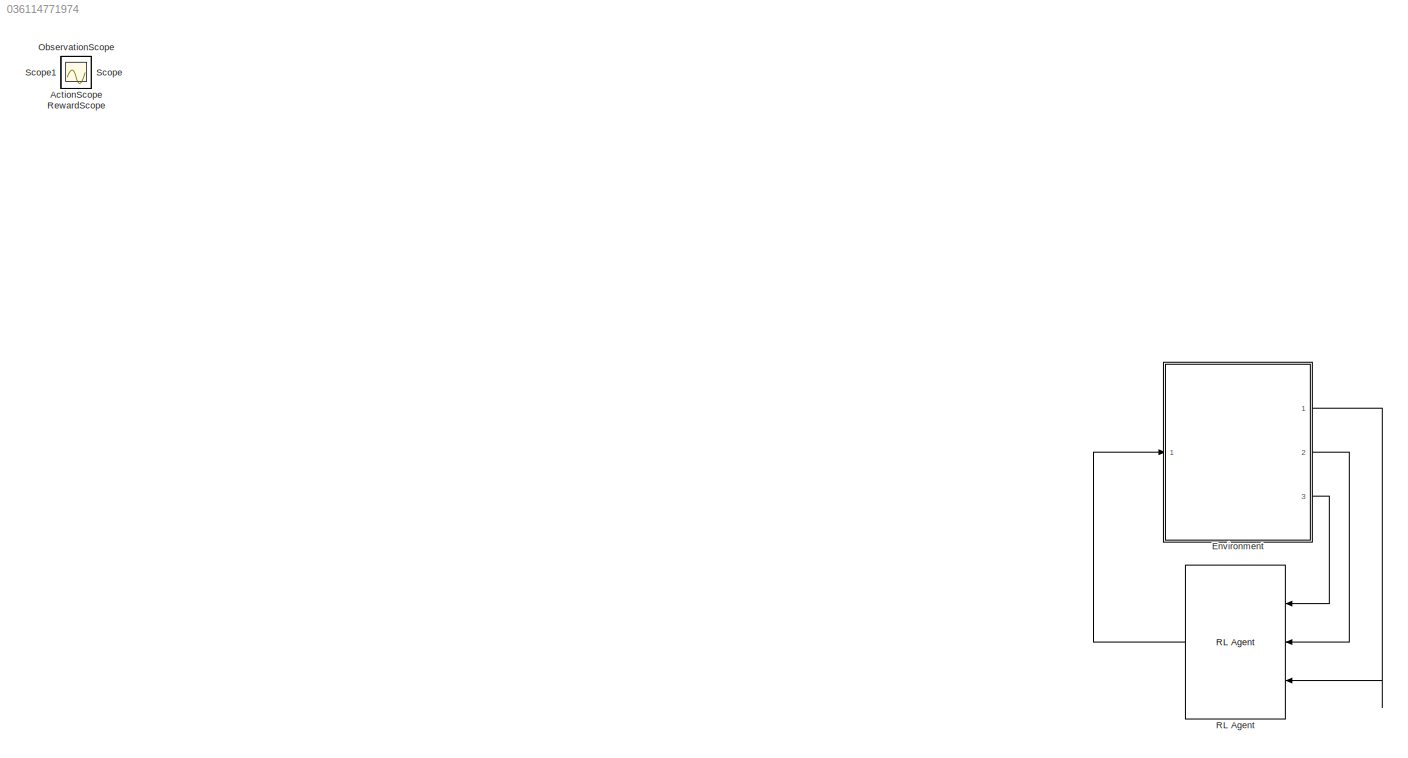
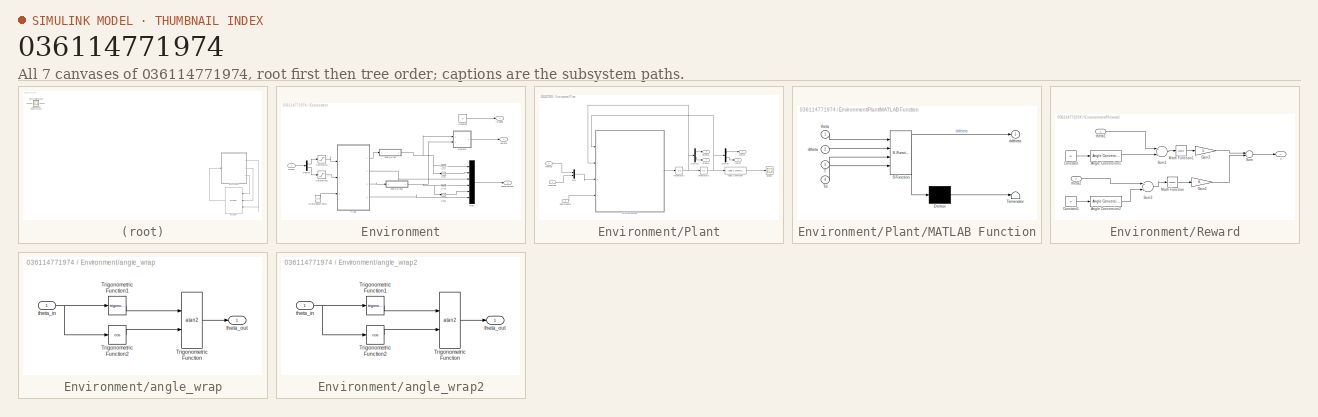
[diagram: thumbnail index - all 7 canvases of the model, root first then tree order]
MODEL slx_036114771974
KIND model
CONFIG AbsTol = auto
CONFIG EnableMultiTasking = off
CONFIG FixedStep = auto
CONFIG MaxStep = auto
CONFIG MinStep = auto
CONFIG RelTol = 1e-3
CONFIG SampleTimeConstraint = Unconstrained
CONFIG Solver = VariableStepAuto
CONFIG SolverName = VariableStepAuto
CONFIG StartTime = 0.0
CONFIG StopTime = 25
WORKSPACE source: MATLAB code (in-file)
WORKSPACE mCart = 1
WORKSPACE mPend = 1
WORKSPACE g = 9.81
WORKSPACE L = 0.5
WORKSPACE theta0 = 180
WORKSPACE Kd = 10
BLOCK [Scope] ActionScope
  Floating = off
  IOType = viewer
  NumInputPorts = 1
  Ports = []
  ScopeSpecificationString = Simulink.scopes.TimeScopeBlockCfg('CurrentConfiguration', extmgr.ConfigurationSet(extmgr.Configuration('Core','General UI',true),extmgr.Configuration('Core','Source UI',true),extmgr.Configuration('Sources','WiredSimulink',true,'DataLoggingVariableName','ScopeData1'),extmgr.Configuration('Visuals','Time Domain',true,'SerializedDisplays',{struct('MinYLimReal','-5.88542','MaxYLimReal','17.00032','YLa...<+1437ch>
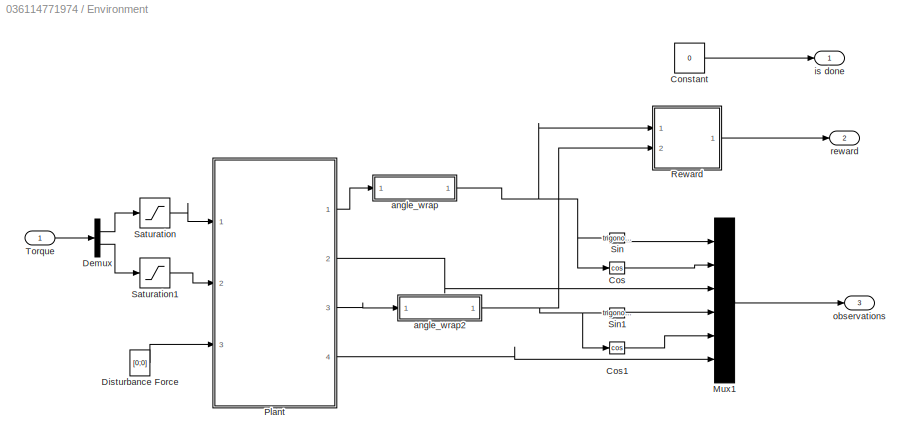
BLOCK [SubSystem] Environment
  Ports = [1, 3]
  RequestExecContextInheritance = off
BLOCK [Constant] Environment/Constant
  Value = 0
BLOCK [Trigonometry] Environment/Cos
  Operator = cos
  Ports = [1, 1]
BLOCK [Trigonometry] Environment/Cos1
  Operator = cos
  Ports = [1, 1]
BLOCK [Demux] Environment/Demux
  DisplayOption = bar
  Outputs = 2
  Ports = [1, 2]
BLOCK [Constant] Environment/Disturbance Force
  Value = [0;0]
BLOCK [Mux] Environment/Mux1
  DisplayOption = bar
  Inputs = 6
  Ports = [6, 1]
BLOCK [SubSystem] Environment/Plant
  Ports = [3, 4]
  RequestExecContextInheritance = off
BLOCK [Reference] Environment/Plant/Angle Conversion  REF=aerolibconvert2/Angle Conversion
  Ports = [1, 1]
  SourceBlock = aerolibconvert2/Angle Conversion
  SourceProductBaseCode = AE
  SourceProductName = Aerospace Blockset
  SourceType = Angle Conversion
BLOCK [Demux] Environment/Plant/Demux
  DisplayOption = bar
  Outputs = 2
  Ports = [1, 2]
BLOCK [Demux] Environment/Plant/Demux1
  DisplayOption = bar
  Outputs = 2
  Ports = [1, 2]
BLOCK [Integrator] Environment/Plant/Integrator2
  InitialCondition = zeros(2,1)
  Ports = [1, 1]
BLOCK [Integrator] Environment/Plant/Integrator3
  InitialCondition = [-pi/2;0]
  Ports = [1, 1]
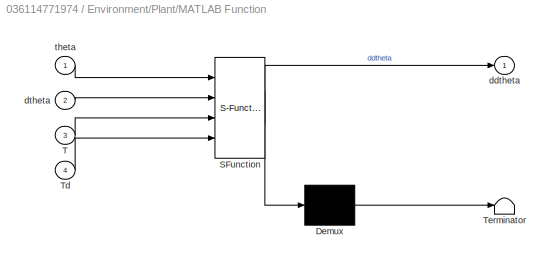
BLOCK [SubSystem] Environment/Plant/MATLAB Function
  ErrorFcn = Stateflow.Translate.translate
  PermitHierarchicalResolution = ExplicitOnly
  Ports = [4, 1]
  RequestExecContextInheritance = off
  SFBlockType = MATLAB Function
  TreatAsAtomicUnit = on
BLOCK [Demux] Environment/Plant/MATLAB Function/ Demux 
  Outputs = 1
  Ports = [1, 1]
BLOCK [S-Function] Environment/Plant/MATLAB Function/ SFunction 
  EnableBusSupport = on
  FunctionName = sf_sfun
  PortCounts = [4 2]
  Ports = [4, 2]
  SFcnIsStateOwnerBlock = off
  SFunctionDeploymentMode = off
  Tag = Stateflow S-Function twolink4 2
BLOCK [Terminator] Environment/Plant/MATLAB Function/ Terminator 
BLOCK [Inport] Environment/Plant/MATLAB Function/T
  IconDisplay = Port number
  Port = 3
BLOCK [Inport] Environment/Plant/MATLAB Function/Td
  IconDisplay = Port number
  Port = 4
BLOCK [Outport] Environment/Plant/MATLAB Function/ddtheta
  IconDisplay = Port number
BLOCK [Inport] Environment/Plant/MATLAB Function/dtheta
  IconDisplay = Port number
  Port = 2
BLOCK [Inport] Environment/Plant/MATLAB Function/theta
  IconDisplay = Port number
BLOCK [Mux] Environment/Plant/Mux
  DisplayOption = bar
  Inputs = 2
  Ports = [2, 1]
BLOCK [Scope] Environment/Plant/Scope
  Floating = off
  NumInputPorts = 1
  Ports = [1]
  ScopeSpecificationString = Simulink.scopes.TimeScopeBlockCfg('CurrentConfiguration', extmgr.ConfigurationSet(extmgr.Configuration('Core','General UI',true),extmgr.Configuration('Core','Source UI',true),extmgr.Configuration('Sources','WiredSimulink',true,'DataLoggingVariableName','ScopeData1'),extmgr.Configuration('Visuals','Time Domain',true,'SerializedDisplays',{struct('MinYLimReal','-101.25','MaxYLimReal','11.25','YLabelR...<+1465ch>
BLOCK [Inport] Environment/Plant/Tconrol1
  IconDisplay = Port number
BLOCK [Inport] Environment/Plant/Tcontrol2
  IconDisplay = Port number
  Port = 2
BLOCK [Inport] Environment/Plant/Tdisturbance
  IconDisplay = Port number
  Port = 3
BLOCK [Outport] Environment/Plant/dtheta1
  IconDisplay = Port number
  Port = 2
BLOCK [Outport] Environment/Plant/dtheta2
  IconDisplay = Port number
  Port = 4
BLOCK [Outport] Environment/Plant/theta1
  IconDisplay = Port number
BLOCK [Outport] Environment/Plant/theta2
  IconDisplay = Port number
  Port = 3
BLOCK [SubSystem] Environment/Reward
  Ports = [2, 1]
  RequestExecContextInheritance = off
BLOCK [Reference] Environment/Reward/Angle Conversion1  REF=aerolibconvert2/Angle Conversion
  Ports = [1, 1]
  SourceBlock = aerolibconvert2/Angle Conversion
  SourceProductBaseCode = AE
  SourceProductName = Aerospace Blockset
  SourceType = Angle Conversion
BLOCK [Reference] Environment/Reward/Angle Conversion2  REF=aerolibconvert2/Angle Conversion
  Ports = [1, 1]
  SourceBlock = aerolibconvert2/Angle Conversion
  SourceProductBaseCode = AE
  SourceProductName = Aerospace Blockset
  SourceType = Angle Conversion
BLOCK [Constant] Environment/Reward/Constant
  Value = 60
BLOCK [Constant] Environment/Reward/Constant1
  Value = 70
BLOCK [Gain] Environment/Reward/Gain2
  OutDataTypeStr = Inherit: Inherit via internal rule
  ParamDataTypeStr = Inherit: Inherit via internal rule
  SaturateOnIntegerOverflow = off
BLOCK [Gain] Environment/Reward/Gain3
  Gain = 5
  OutDataTypeStr = Inherit: Inherit via internal rule
  ParamDataTypeStr = Inherit: Inherit via internal rule
  SaturateOnIntegerOverflow = off
BLOCK [Math] Environment/Reward/Math Function
  Operator = square
  Ports = [1, 1]
BLOCK [Math] Environment/Reward/Math Function1
  Operator = square
  Ports = [1, 1]
BLOCK [Sum] Environment/Reward/Sum
  InputSameDT = off
  Inputs = --
  OutDataTypeStr = Inherit: Inherit via internal rule
  Ports = [2, 1]
  SaturateOnIntegerOverflow = off
BLOCK [Sum] Environment/Reward/Sum1
  InputSameDT = off
  OutDataTypeStr = Inherit: Inherit via internal rule
  Ports = [2, 1]
  SaturateOnIntegerOverflow = off
BLOCK [Sum] Environment/Reward/Sum2
  InputSameDT = off
  OutDataTypeStr = Inherit: Inherit via internal rule
  Ports = [2, 1]
  SaturateOnIntegerOverflow = off
BLOCK [Outport] Environment/Reward/r
  IconDisplay = Port number
BLOCK [Inport] Environment/Reward/theta1
  IconDisplay = Port number
BLOCK [Inport] Environment/Reward/theta2
  IconDisplay = Port number
  Port = 2
BLOCK [Saturate] Environment/Saturation
  InputPortMap = u0
  LowerLimit = -15
  Ports = [1, 1]
  UpperLimit = 15
BLOCK [Saturate] Environment/Saturation1
  InputPortMap = u0
  LowerLimit = -15
  Ports = [1, 1]
  UpperLimit = 15
BLOCK [Trigonometry] Environment/Sin
  Ports = [1, 1]
BLOCK [Trigonometry] Environment/Sin1
  Ports = [1, 1]
BLOCK [Inport] Environment/Torque
  IconDisplay = Port number
BLOCK [SubSystem] Environment/angle_wrap
  Ports = [1, 1]
  RequestExecContextInheritance = off
BLOCK [Trigonometry] Environment/angle_wrap/Trigonometric Function
  Operator = atan2
  Ports = [2, 1]
BLOCK [Trigonometry] Environment/angle_wrap/Trigonometric Function1
  Ports = [1, 1]
BLOCK [Trigonometry] Environment/angle_wrap/Trigonometric Function2
  Operator = cos
  Ports = [1, 1]
BLOCK [Inport] Environment/angle_wrap/theta_in
  IconDisplay = Port number
BLOCK [Outport] Environment/angle_wrap/theta_out
  IconDisplay = Port number
BLOCK [SubSystem] Environment/angle_wrap2
  Ports = [1, 1]
  RequestExecContextInheritance = off
BLOCK [Trigonometry] Environment/angle_wrap2/Trigonometric Function
  Operator = atan2
  Ports = [2, 1]
BLOCK [Trigonometry] Environment/angle_wrap2/Trigonometric Function1
  Ports = [1, 1]
BLOCK [Trigonometry] Environment/angle_wrap2/Trigonometric Function2
  Operator = cos
  Ports = [1, 1]
BLOCK [Inport] Environment/angle_wrap2/theta_in
  IconDisplay = Port number
BLOCK [Outport] Environment/angle_wrap2/theta_out
  IconDisplay = Port number
BLOCK [Outport] Environment/is done
  IconDisplay = Port number
BLOCK [Outport] Environment/observations
  IconDisplay = Port number
  Port = 3
BLOCK [Outport] Environment/reward
  IconDisplay = Port number
  Port = 2
BLOCK [Scope] ObservationScope
  Floating = off
  IOType = viewer
  NumInputPorts = 1
  Ports = []
  ScopeSpecificationString = Simulink.scopes.TimeScopeBlockCfg('CurrentConfiguration', extmgr.ConfigurationSet(extmgr.Configuration('Core','General UI',true),extmgr.Configuration('Core','Source UI',true),extmgr.Configuration('Sources','WiredSimulink',true),extmgr.Configuration('Visuals','Time Domain',true,'SerializedDisplays',{struct('MinYLimReal','-0.2486','MaxYLimReal','0.02762','YLabelReal','','MinYLimMag','0.00000','MaxYL...<+3374ch>
BLOCK [Reference] RL Agent  REF=rllib/RL Agent
  Ports = [3, 1]
  SourceBlock = rllib/RL Agent
  SourceProductBaseCode = RL
  SourceProductName = Reinforcement Learning Toolbox
  SourceType = RL Agent
BLOCK [Scope] RewardScope
  Floating = off
  IOType = viewer
  NumInputPorts = 1
  Ports = []
  ScopeSpecificationString = Simulink.scopes.TimeScopeBlockCfg('CurrentConfiguration', extmgr.ConfigurationSet(extmgr.Configuration('Core','General UI',true),extmgr.Configuration('Core','Source UI',true),extmgr.Configuration('Sources','WiredSimulink',true,'DataLoggingVariableName','ScopeData2'),extmgr.Configuration('Visuals','Time Domain',true,'SerializedDisplays',{struct('MinYLimReal','-3.22133','MaxYLimReal','0.35793','YLab...<+1416ch>
BLOCK [Scope] Scope
  Floating = off
  IOType = viewer
  NumInputPorts = 1
  Ports = []
  ScopeSpecificationString = Simulink.scopes.TimeScopeBlockCfg('CurrentConfiguration', extmgr.ConfigurationSet(extmgr.Configuration('Core','General UI',true),extmgr.Configuration('Core','Source UI',true),extmgr.Configuration('Sources','WiredSimulink',true,'DataLoggingVariableName','ScopeData1'),extmgr.Configuration('Visuals','Time Domain',true,'SerializedDisplays',{struct('MinYLimReal','-16.11691','MaxYLimReal','-4.94778','YL...<+1420ch>
BLOCK [Scope] Scope1
  Floating = off
  IOType = viewer
  NumInputPorts = 1
  Ports = []
  ScopeSpecificationString = Simulink.scopes.TimeScopeBlockCfg('CurrentConfiguration', extmgr.ConfigurationSet(extmgr.Configuration('Core','General UI',true),extmgr.Configuration('Core','Source UI',true),extmgr.Configuration('Sources','WiredSimulink',true,'DataLoggingVariableName','ScopeData2'),extmgr.Configuration('Visuals','Time Domain',true,'SerializedDisplays',{struct('MinYLimReal','-101.25','MaxYLimReal','11.25','YLabelR...<+1465ch>
LINE Environment/Constant:1 -> Environment/is done:1
LINE Environment/Cos1:1 -> Environment/Mux1:5
LINE Environment/Cos:1 -> Environment/Mux1:2
LINE Environment/Demux:1 -> Environment/Saturation:1
LINE Environment/Demux:2 -> Environment/Saturation1:1
LINE Environment/Disturbance Force:1 -> Environment/Plant:3
LINE Environment/Mux1:1 -> Environment/observations:1
LINE Environment/Plant/Angle Conversion:1 -> Environment/Plant/Scope:1
LINE Environment/Plant/Demux1:1 -> Environment/Plant/dtheta1:1
LINE Environment/Plant/Demux1:2 -> Environment/Plant/dtheta2:1
LINE Environment/Plant/Demux:1 -> Environment/Plant/theta1:1
LINE Environment/Plant/Demux:2 -> Environment/Plant/theta2:1
NET Environment/Plant/Integrator2:1 -> Environment/Plant/Demux1:1, Environment/Plant/Integrator3:1, Environment/Plant/MATLAB Function:2
NET Environment/Plant/Integrator3:1 -> Environment/Plant/Angle Conversion:1, Environment/Plant/Demux:1, Environment/Plant/MATLAB Function:1
LINE Environment/Plant/MATLAB Function:1 -> Environment/Plant/Integrator2:1
LINE Environment/Plant/Mux:1 -> Environment/Plant/MATLAB Function:3
LINE Environment/Plant/Tconrol1:1 -> Environment/Plant/Mux:1
LINE Environment/Plant/Tcontrol2:1 -> Environment/Plant/Mux:2
LINE Environment/Plant/Tdisturbance:1 -> Environment/Plant/MATLAB Function:4
LINE Environment/Plant:1 -> Environment/angle_wrap:1
LINE Environment/Plant:2 -> Environment/Mux1:3
LINE Environment/Plant:3 -> Environment/angle_wrap2:1
LINE Environment/Plant:4 -> Environment/Mux1:6
LINE Environment/Reward/Angle Conversion1:1 -> Environment/Reward/Sum1:2
LINE Environment/Reward/Angle Conversion2:1 -> Environment/Reward/Sum2:2
LINE Environment/Reward/Constant1:1 -> Environment/Reward/Angle Conversion2:1
LINE Environment/Reward/Constant:1 -> Environment/Reward/Angle Conversion1:1
LINE Environment/Reward/Gain2:1 -> Environment/Reward/Sum:2
LINE Environment/Reward/Gain3:1 -> Environment/Reward/Sum:1
LINE Environment/Reward/Math Function1:1 -> Environment/Reward/Gain3:1
LINE Environment/Reward/Math Function:1 -> Environment/Reward/Gain2:1
LINE Environment/Reward/Sum1:1 -> Environment/Reward/Math Function1:1
LINE Environment/Reward/Sum2:1 -> Environment/Reward/Math Function:1
LINE Environment/Reward/Sum:1 -> Environment/Reward/r:1
LINE Environment/Reward/theta1:1 -> Environment/Reward/Sum1:1
LINE Environment/Reward/theta2:1 -> Environment/Reward/Sum2:1
LINE Environment/Reward:1 -> Environment/reward:1
LINE Environment/Saturation1:1 -> Environment/Plant:2
LINE Environment/Saturation:1 -> Environment/Plant:1
LINE Environment/Sin1:1 -> Environment/Mux1:4
LINE Environment/Sin:1 -> Environment/Mux1:1
LINE Environment/Torque:1 -> Environment/Demux:1
LINE Environment/angle_wrap/Trigonometric Function1:1 -> Environment/angle_wrap/Trigonometric Function:1
LINE Environment/angle_wrap/Trigonometric Function2:1 -> Environment/angle_wrap/Trigonometric Function:2
LINE Environment/angle_wrap/Trigonometric Function:1 -> Environment/angle_wrap/theta_out:1
NET Environment/angle_wrap/theta_in:1 -> Environment/angle_wrap/Trigonometric Function1:1, Environment/angle_wrap/Trigonometric Function2:1
LINE Environment/angle_wrap2/Trigonometric Function1:1 -> Environment/angle_wrap2/Trigonometric Function:1
LINE Environment/angle_wrap2/Trigonometric Function2:1 -> Environment/angle_wrap2/Trigonometric Function:2
LINE Environment/angle_wrap2/Trigonometric Function:1 -> Environment/angle_wrap2/theta_out:1
NET Environment/angle_wrap2/theta_in:1 -> Environment/angle_wrap2/Trigonometric Function1:1, Environment/angle_wrap2/Trigonometric Function2:1
NET Environment/angle_wrap2:1 -> Environment/Cos1:1, Environment/Reward:2, Environment/Sin1:1
NET Environment/angle_wrap:1 -> Environment/Cos:1, Environment/Reward:1, Environment/Sin:1
LINE Environment:1 -> RL Agent:3
LINE Environment:2 -> RL Agent:2
LINE Environment:3 -> RL Agent:1
LINE RL Agent:1 -> Environment:1
note: NET lines group one-source signal fan-out (src -> all destinations, sorted); 1:1 wires keep LINE
CHART Environment/Plant/MATLAB Function states=1 transitions=1
  STATE_LABEL 'eML_blk_kernel()'
  STATE_LABEL 'SCRIPT:\nfunction ddtheta  = fcn(theta,dtheta,T,Td)\ntheta1=theta(1);theta2=theta(2);\ndtheta1=dtheta(1);dtheta2=dtheta(2);\nm1=3.9775;\nm2=2.84;\nl1=0.432;\nl2=0.432;\ng=9.81;\nc1=10.8;\nc2=3.2;\n\n\na=l2^2*m2+l1^2*(m1+m2);\nb=2*l1*l2*m2;\nc=l2^2*m2;\nd=(m1+m2)*l1*g;\ne=m2*l2*g;\n\n\nM=[a+b*cos(theta2) c+b*cos(theta2)/2;...\n    c+b*cos(theta2)/2 c];\nV=[-b*dtheta2*sin(theta2) -b*dtheta2*sin(theta2)/2;...\n    b*dtheta...<+147ch>'
